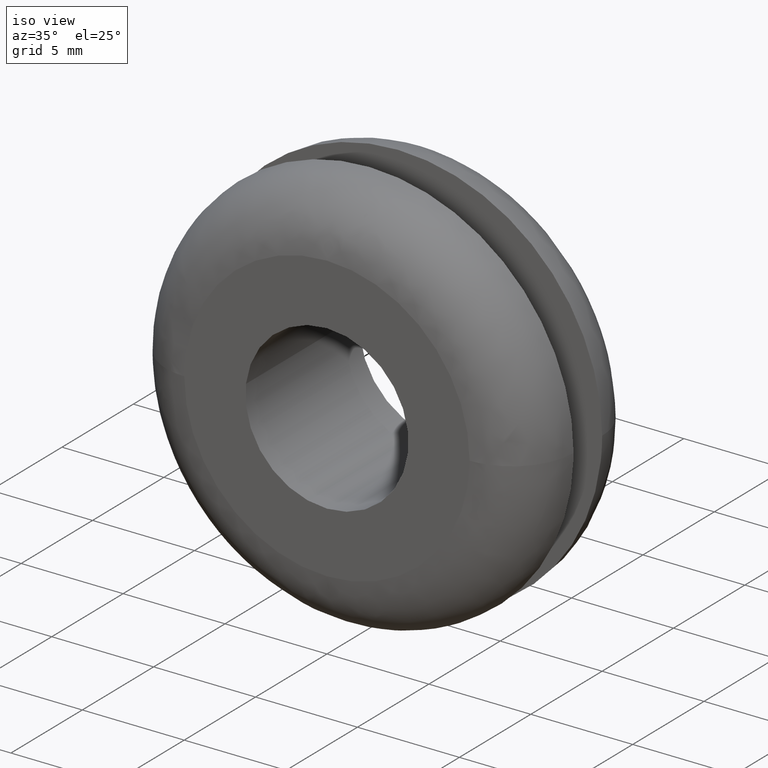
[diagram: clean part render]
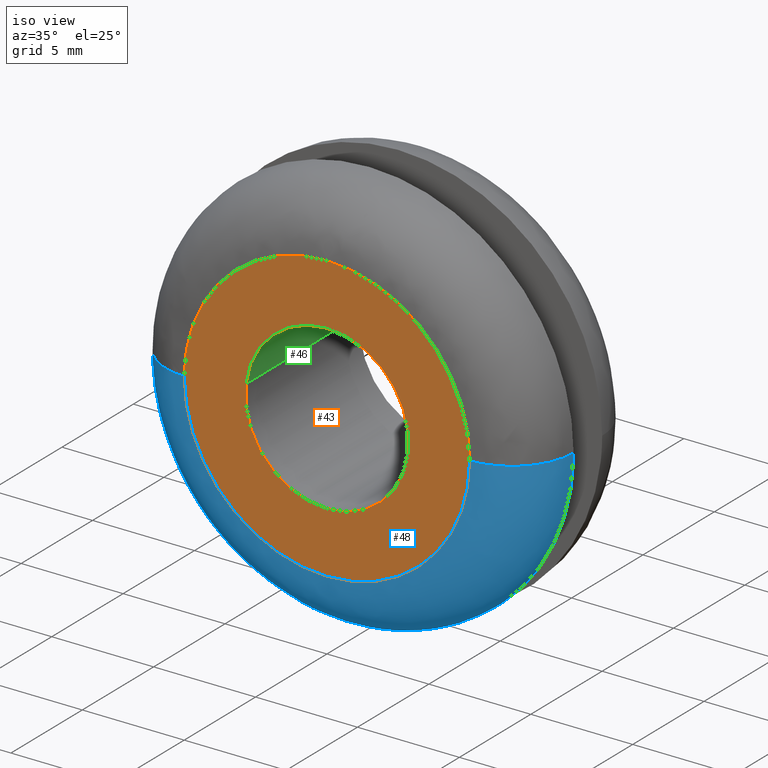
[diagram: same view with three faces highlighted in distinct colors, each labeled with its STEP entity id]
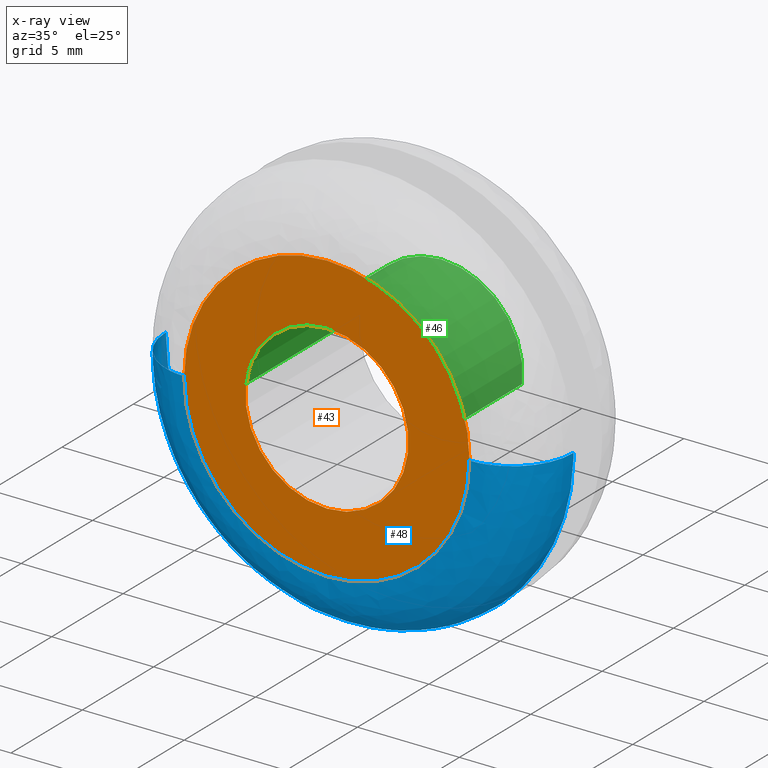
[diagram: x-ray of the same camera — body ghosted, the three highlighted faces saturated]
A machine part, iso view with three faces highlighted in distinct colors.
The next image is the same camera in x-ray (body ghosted, the three faces saturated) — at least one of them is partly hidden behind the body in this view.
Their STEP definitions:

[orange] entity #43 — the highlighted planar face has unit normal (0, 1, 0).
#43=ADVANCED_FACE('',(#86,#87),#85,.F.);
#85=PLANE('',#197);
#86=FACE_OUTER_BOUND('',#198,.T.);
#87=FACE_BOUND('',#199,.T.);
#194=CARTESIAN_POINT('',(-1.45492267837E+001,-1.03351600000E-015,-1.61000000001E+001));
#195=DIRECTION('',(0.00000000000E+000,1.00000000000E+000,0.00000000000E+000));
#196=DIRECTION('',(0.00000000000E+000,0.00000000000E+000,1.00000000000E+000));
#197=AXIS2_PLACEMENT_3D('',#194,#195,#196);
#198=EDGE_LOOP('',(#347,#348,#349));
#199=EDGE_LOOP('',(#350,#351,#352));
#347=ORIENTED_EDGE('',*,*,#421,.T.);
#348=ORIENTED_EDGE('',*,*,#422,.T.);
#349=ORIENTED_EDGE('',*,*,#423,.T.);
#350=ORIENTED_EDGE('',*,*,#424,.F.);
#351=ORIENTED_EDGE('',*,*,#425,.F.);
#352=ORIENTED_EDGE('',*,*,#426,.F.);
#421=EDGE_CURVE('',#596,#597,#598,.T.);
#422=EDGE_CURVE('',#597,#604,#605,.T.);
#423=EDGE_CURVE('',#604,#596,#611,.T.);
#424=EDGE_CURVE('',#617,#618,#619,.T.);
#425=EDGE_CURVE('',#625,#617,#626,.T.);
#426=EDGE_CURVE('',#618,#625,#632,.T.);
#596=VERTEX_POINT('',#801);
#597=VERTEX_POINT('',#802);
#598=CIRCLE('',#806,7.00000000004E+000);
#604=VERTEX_POINT('',#807);
#605=CIRCLE('',#811,7.00000000004E+000);
#611=CIRCLE('',#815,7.00000000004E+000);
#617=VERTEX_POINT('',#816);
#618=VERTEX_POINT('',#817);
#619=CIRCLE('',#821,3.99999999999E+000);
#625=VERTEX_POINT('',#822);
#626=CIRCLE('',#826,3.99999999999E+000);
#632=CIRCLE('',#830,3.99999999999E+000);
#801=CARTESIAN_POINT('',(-3.09538817939E-017,1.18791237333E-015,7.00000000008E+000));
#802=CARTESIAN_POINT('',(-7.00000000005E+000,-7.21778133416E-017,-2.76227249042E-015));
#803=CARTESIAN_POINT('',(-7.58548779345E-012,-7.21778133341E-017,4.16320311558E-011));
#804=DIRECTION('',(-3.77106790575E-033,-1.00000000000E+000,1.80012883808E-016));
#805=DIRECTION('',(1.08351423072E-012,1.80012883808E-016,1.00000000000E+000));
#806=AXIS2_PLACEMENT_3D('',#803,#804,#805);
#807=CARTESIAN_POINT('',(6.99999996234E+000,-7.23085905043E-017,-7.26487793142E-004));
#808=CARTESIAN_POINT('',(-7.58548779345E-012,-7.21778133341E-017,4.16320311558E-011));
#809=DIRECTION('',(-3.77106790575E-033,-1.00000000000E+000,1.80012883808E-016));
#810=DIRECTION('',(1.08351423072E-012,1.80012883808E-016,1.00000000000E+000));
#811=AXIS2_PLACEMENT_3D('',#808,#809,#810);
#812=CARTESIAN_POINT('',(-7.58548779345E-012,-7.21778133341E-017,4.16320311558E-011));
#813=DIRECTION('',(-3.77106790575E-033,-1.00000000000E+000,1.80012883808E-016));
#814=DIRECTION('',(1.08351423072E-012,1.80012883808E-016,1.00000000000E+000));
#815=AXIS2_PLACEMENT_3D('',#812,#813,#814);
#816=CARTESIAN_POINT('',(-3.97203827810E+000,5.66130575414E-017,4.72135486074E-001));
#817=CARTESIAN_POINT('',(-2.05391259556E-015,6.47153993998E-015,-3.99999999998E+000));
#818=CARTESIAN_POINT('',(4.11959355517E-012,-1.41182685114E-016,9.06452690685E-012));
#819=DIRECTION('',(-2.46302005888E-016,-1.00000000000E+000,-1.65318065628E-015));
#820=DIRECTION('',(-1.03005104446E-012,1.65318065628E-015,-1.00000000000E+000));
#821=AXIS2_PLACEMENT_3D('',#818,#819,#820);
#822=CARTESIAN_POINT('',(3.97195644362E+000,-3.37820951669E-016,-4.72823444808E-001));
#823=CARTESIAN_POINT('',(4.11959355517E-012,-1.41182685114E-016,9.06452690685E-012));
#824=DIRECTION('',(-2.46302005888E-016,-1.00000000000E+000,-1.65318065628E-015));
#825=DIRECTION('',(-1.03005104446E-012,1.65318065628E-015,-1.00000000000E+000));
#826=AXIS2_PLACEMENT_3D('',#823,#824,#825);
#827=CARTESIAN_POINT('',(4.11959355517E-012,-1.41182685114E-016,9.06452690685E-012));
#828=DIRECTION('',(-2.46302005888E-016,-1.00000000000E+000,-1.65318065628E-015));
#829=DIRECTION('',(-1.03005104446E-012,1.65318065628E-015,-1.00000000000E+000));
#830=AXIS2_PLACEMENT_3D('',#827,#828,#829);

[blue] entity #48 — the highlighted face is a freeform B-spline surface patch.
#48=ADVANCED_FACE('',(#137),#136,.T.);
#136=( BOUNDED_SURFACE() B_SPLINE_SURFACE( 2,2,((#220,#221,#222,#223,#224),(#225,#226,#227,#228,#229),(#230,#231,#232,#233,#234),(#235,#236,#237,#238,#239),(#240,#241,#242,#243,#244)), .UNSPECIFIED.,.F.,.F.,.F.) B_SPLINE_SURFACE_WITH_KNOTS((3,2,3),(3,2,3),(0.00000000000E+000,5.00000000000E-001,1.00000000000E+000),(0.00000000000E+000,5.00000000000E-001,1.00000000000E+000), .UNSPECIFIED. ) GEOMETRIC_REPRESENTATION_ITEM() RATIONAL_B_SPLINE_SURFACE(((1.00000000000E+000,7.07106781055E-001,1.00000000000E+000,7.07106781055E-001,1.00000000000E+000),(7.07106781187E-001,4.99999999907E-001,7.07106781187E-001,4.99999999907E-001,7.07106781187E-001),(1.00000000000E+000,7.07106781055E-001,1.00000000000E+000,7.07106781055E-001,1.00000000000E+000),(7.07106781187E-001,4.99999999907E-001,7.07106781187E-001,4.99999999907E-001,7.07106781187E-001),(1.00000000000E+000,7.07106781055E-001,1.00000000000E+000,7.07106781055E-001,1.00000000000E+000))) REPRESENTATION_ITEM('') SURFACE() );
#137=FACE_OUTER_BOUND('',#245,.T.);
#220=CARTESIAN_POINT('',(-1.00000000000E+001,3.00000000000E+000,-3.79958651348E-015));
#221=CARTESIAN_POINT('',(-1.00000000000E+001,-1.11198846633E-009,-4.43401791642E-015));
#222=CARTESIAN_POINT('',(-6.99999999889E+000,2.66453525910E-015,-4.06663600990E-015));
#223=CARTESIAN_POINT('',(-3.99999999778E+000,1.11199411866E-009,-3.69925410338E-015));
#224=CARTESIAN_POINT('',(-4.00000000000E+000,3.00000000222E+000,-3.06482270071E-015));
#225=CARTESIAN_POINT('',(-1.00000000000E+001,3.00000000000E+000,-1.00000000000E+001));
#226=CARTESIAN_POINT('',(-1.00000000000E+001,-1.11198653759E-009,-1.00000000000E+001));
#227=CARTESIAN_POINT('',(-6.99999999889E+000,3.84441556344E-015,-6.99999999889E+000));
#228=CARTESIAN_POINT('',(-3.99999999778E+000,1.11199526698E-009,-3.99999999778E+000));
#229=CARTESIAN_POINT('',(-4.00000000000E+000,3.00000000222E+000,-4.00000000000E+000));
#230=CARTESIAN_POINT('',(-1.98980225972E-015,3.00000000000E+000,-1.00000000000E+001));
#231=CARTESIAN_POINT('',(-2.65695287611E-015,-1.11198846633E-009,-1.00000000000E+001));
#232=CARTESIAN_POINT('',(-2.84063776221E-015,2.66453525910E-015,-6.99999999889E+000));
#233=CARTESIAN_POINT('',(-3.02432264830E-015,1.11199411866E-009,-3.99999999778E+000));
#234=CARTESIAN_POINT('',(-2.35717203177E-015,3.00000000222E+000,-4.00000000000E+000));
#235=CARTESIAN_POINT('',(1.00000000000E+001,3.00000000000E+000,-1.00000000000E+001));
#236=CARTESIAN_POINT('',(1.00000000000E+001,-1.11199123862E-009,-1.00000000000E+001));
#237=CARTESIAN_POINT('',(6.99999999889E+000,8.88178419700E-016,-6.99999999889E+000));
#238=CARTESIAN_POINT('',(3.99999999778E+000,1.11199349063E-009,-3.99999999778E+000));
#239=CARTESIAN_POINT('',(4.00000000000E+000,3.00000000222E+000,-4.00000000000E+000));
#240=CARTESIAN_POINT('',(1.00000000000E+001,3.00000000000E+000,-2.57502060498E-015));
#241=CARTESIAN_POINT('',(1.00000000000E+001,-1.11199286259E-009,-3.20945200792E-015));
#242=CARTESIAN_POINT('',(6.99999999889E+000,-4.44089209850E-016,-3.20943987409E-015));
#243=CARTESIAN_POINT('',(3.99999999778E+000,1.11199223455E-009,-3.20942774026E-015));
#244=CARTESIAN_POINT('',(4.00000000000E+000,3.00000000222E+000,-2.57499633731E-015));
#245=EDGE_LOOP('',(#373,#374,#375,#376,#377,#378));
#373=ORIENTED_EDGE('',*,*,#422,.F.);
#374=ORIENTED_EDGE('',*,*,#431,.F.);
#375=ORIENTED_EDGE('',*,*,#412,.T.);
#376=ORIENTED_EDGE('',*,*,#417,.T.);
#377=ORIENTED_EDGE('',*,*,#416,.T.);
#378=ORIENTED_EDGE('',*,*,#432,.T.);
#412=EDGE_CURVE('',#533,#534,#535,.T.);
#416=EDGE_CURVE('',#562,#555,#563,.T.);
#417=EDGE_CURVE('',#534,#562,#569,.T.);
#422=EDGE_CURVE('',#597,#604,#605,.T.);
#431=EDGE_CURVE('',#533,#597,#662,.T.);
#432=EDGE_CURVE('',#555,#604,#668,.T.);
#533=VERTEX_POINT('',#756);
#534=VERTEX_POINT('',#757);
#535=CIRCLE('',#761,1.00000000000E+001);
#555=VERTEX_POINT('',#772);
#562=VERTEX_POINT('',#777);
#563=CIRCLE('',#781,1.00000000000E+001);
#569=CIRCLE('',#785,1.00000000000E+001);
#597=VERTEX_POINT('',#802);
#604=VERTEX_POINT('',#807);
#605=CIRCLE('',#811,7.00000000004E+000);
#662=(BOUNDED_CURVE() B_SPLINE_CURVE(2,(#839,#840,#841),.UNSPECIFIED.,.F.,.F.) B_SPLINE_CURVE_WITH_KNOTS((3,3),(0.00000000000E+000,5.00000000000E-001),.UNSPECIFIED.) CURVE() GEOMETRIC_REPRESENTATION_ITEM() RATIONAL_B_SPLINE_CURVE((1.00000000000E+000,7.07106781055E-001,1.00000000000E+000)) REPRESENTATION_ITEM('') );
#668=(BOUNDED_CURVE() B_SPLINE_CURVE(3,(#842,#843,#844,#845,#846),.UNSPECIFIED.,.F.,.F.) B_SPLINE_CURVE_WITH_KNOTS((4,1,4),(0.00000000000E+000,2.50000070662E-001,5.00000122709E-001),.UNSPECIFIED.) CURVE() GEOMETRIC_REPRESENTATION_ITEM() RATIONAL_B_SPLINE_CURVE((1.00000000000E+000,1.00000000000E+000,1.00000000000E+000,1.00000000000E+000,1.00000000000E+000)) REPRESENTATION_ITEM('') );
#756=CARTESIAN_POINT('',(-1.00000000000E+001,3.00000000003E+000,-3.81995745279E-015));
#757=CARTESIAN_POINT('',(0.00000000000E+000,3.00000000000E+000,-1.00000000000E+001));
#758=CARTESIAN_POINT('',(-9.76996261670E-015,2.99999999995E+000,-1.15463194561E-014));
#759=DIRECTION('',(-7.59071159670E-012,-1.00000000000E+000,-2.27008863008E-010));
#760=DIRECTION('',(9.99684189283E-001,-1.88355997466E-012,-2.51300954437E-002));
#761=AXIS2_PLACEMENT_3D('',#758,#759,#760);
#772=CARTESIAN_POINT('',(9.99999999987E+000,3.00000000003E+000,5.17712017895E-005));
#777=CARTESIAN_POINT('',(9.99684189283E+000,2.99999999997E+000,-2.51300954437E-001));
#778=CARTESIAN_POINT('',(7.10542735760E-015,2.99999999995E+000,9.76996261670E-015));
#779=DIRECTION('',(7.59071159670E-012,-1.00000000000E+000,2.27008863008E-010));
#780=DIRECTION('',(-9.99684189283E-001,-1.88355997466E-012,2.51300954437E-002));
#781=AXIS2_PLACEMENT_3D('',#778,#779,#780);
#782=CARTESIAN_POINT('',(-1.98863148171E-012,2.99999999997E+000,2.03659311637E-012));
#783=DIRECTION('',(-9.18354961580E-041,-1.00000000000E+000,-2.92792456946E-012));
#784=DIRECTION('',(-1.98863148171E-013,-2.92792456946E-012,1.00000000000E+000));
#785=AXIS2_PLACEMENT_3D('',#782,#783,#784);
#802=CARTESIAN_POINT('',(-7.00000000005E+000,-7.21778133416E-017,-2.76227249042E-015));
#807=CARTESIAN_POINT('',(6.99999996234E+000,-7.23085905043E-017,-7.26487793142E-004));
#808=CARTESIAN_POINT('',(-7.58548779345E-012,-7.21778133341E-017,4.16320311558E-011));
#809=DIRECTION('',(-3.77106790575E-033,-1.00000000000E+000,1.80012883808E-016));
#810=DIRECTION('',(1.08351423072E-012,1.80012883808E-016,1.00000000000E+000));
#811=AXIS2_PLACEMENT_3D('',#808,#809,#810);
#839=CARTESIAN_POINT('',(-1.00000000000E+001,3.00000000000E+000,-3.79958651348E-015));
#840=CARTESIAN_POINT('',(-1.00000000000E+001,-1.11198846633E-009,-4.43401791642E-015));
#841=CARTESIAN_POINT('',(-6.99999999889E+000,2.66453525910E-015,-4.06663600990E-015));
#842=CARTESIAN_POINT('',(1.00000000000E+001,3.00000000000E+000,0.00000000000E+000));
#843=CARTESIAN_POINT('',(1.00066721852E+001,2.22164848210E+000,-3.24073439112E-016));
#844=CARTESIAN_POINT('',(9.35012860649E+000,6.49870517800E-001,-1.16081795634E-015));
#845=CARTESIAN_POINT('',(7.77835041521E+000,-6.67245274634E-003,-1.86340995361E-015));
#846=CARTESIAN_POINT('',(6.99999895766E+000,1.80632787490E-013,-2.07241646525E-015));

[green] entity #46 — the highlighted cylindrical surface (partial cylindrical patch) has radius 4 mm, axis along (0, 1, 0).
#46=ADVANCED_FACE('',(#117),#116,.F.);
#116=CYLINDRICAL_SURFACE('',#213,4.00000000000E+000);
#117=FACE_OUTER_BOUND('',#214,.T.);
#210=CARTESIAN_POINT('',(3.77633036272E-015,8.20000000000E+000,3.36809805822E-014));
#211=DIRECTION('',(8.41627251169E-016,1.00000000000E+000,8.02111508812E-015));
#212=DIRECTION('',(-9.93009526364E-001,-1.11022302463E-016,1.18034234657E-001));
#213=AXIS2_PLACEMENT_3D('',#210,#211,#212);
#214=EDGE_LOOP('',(#363,#364,#365,#366));
#363=ORIENTED_EDGE('',*,*,#425,.T.);
#364=ORIENTED_EDGE('',*,*,#429,.T.);
#365=ORIENTED_EDGE('',*,*,#410,.F.);
#366=ORIENTED_EDGE('',*,*,#430,.F.);
#410=EDGE_CURVE('',#513,#520,#521,.T.);
#425=EDGE_CURVE('',#625,#617,#626,.T.);
#429=EDGE_CURVE('',#617,#520,#650,.T.);
#430=EDGE_CURVE('',#625,#513,#656,.T.);
#513=VERTEX_POINT('',#742);
#520=VERTEX_POINT('',#747);
#521=CIRCLE('',#751,3.99999999999E+000);
#617=VERTEX_POINT('',#816);
#625=VERTEX_POINT('',#822);
#626=CIRCLE('',#826,3.99999999999E+000);
#650=(BOUNDED_CURVE() B_SPLINE_CURVE(1,(#835,#836),.UNSPECIFIED.,.F.,.F.) B_SPLINE_CURVE_WITH_KNOTS((2,2),(8.33333366442E-002,9.16666667899E-001),.UNSPECIFIED.) CURVE() GEOMETRIC_REPRESENTATION_ITEM() RATIONAL_B_SPLINE_CURVE((1.00000000000E+000,1.00000000000E+000)) REPRESENTATION_ITEM('') );
#656=(BOUNDED_CURVE() B_SPLINE_CURVE(1,(#837,#838),.UNSPECIFIED.,.F.,.F.) B_SPLINE_CURVE_WITH_KNOTS((2,2),(8.33333333333E-002,9.16666666667E-001),.UNSPECIFIED.) CURVE() GEOMETRIC_REPRESENTATION_ITEM() RATIONAL_B_SPLINE_CURVE((7.50000000000E-001,7.50000000000E-001)) REPRESENTATION_ITEM('') );
#742=CARTESIAN_POINT('',(3.97195644362E+000,8.00000000000E+000,-4.72823444808E-001));
#747=CARTESIAN_POINT('',(-3.97203827810E+000,8.00000000000E+000,4.72135486074E-001));
#748=CARTESIAN_POINT('',(4.21995771660E-012,8.00000000000E+000,9.28590537796E-012));
#749=DIRECTION('',(0.00000000000E+000,-1.00000000000E+000,-0.00000000000E+000));
#750=DIRECTION('',(-1.05444819543E-012,0.00000000000E+000,-1.00000000000E+000));
#751=AXIS2_PLACEMENT_3D('',#748,#749,#750);
#816=CARTESIAN_POINT('',(-3.97203827810E+000,5.66130575414E-017,4.72135486074E-001));
#822=CARTESIAN_POINT('',(3.97195644362E+000,-3.37820951669E-016,-4.72823444808E-001));
#823=CARTESIAN_POINT('',(4.11959355517E-012,-1.41182685114E-016,9.06452690685E-012));
#824=DIRECTION('',(-2.46302005888E-016,-1.00000000000E+000,-1.65318065628E-015));
#825=DIRECTION('',(-1.03005104446E-012,1.65318065628E-015,-1.00000000000E+000));
#826=AXIS2_PLACEMENT_3D('',#823,#824,#825);
#835=CARTESIAN_POINT('',(-3.97203810545E+000,3.17843147357E-008,4.72136938627E-001));
#836=CARTESIAN_POINT('',(-3.97203810545E+000,8.00000001183E+000,4.72136938627E-001));
#837=CARTESIAN_POINT('',(3.97203810545E+000,2.96059473233E-016,-4.72136938627E-001));
#838=CARTESIAN_POINT('',(3.97203810545E+000,8.00000000000E+000,-4.72136938627E-001));